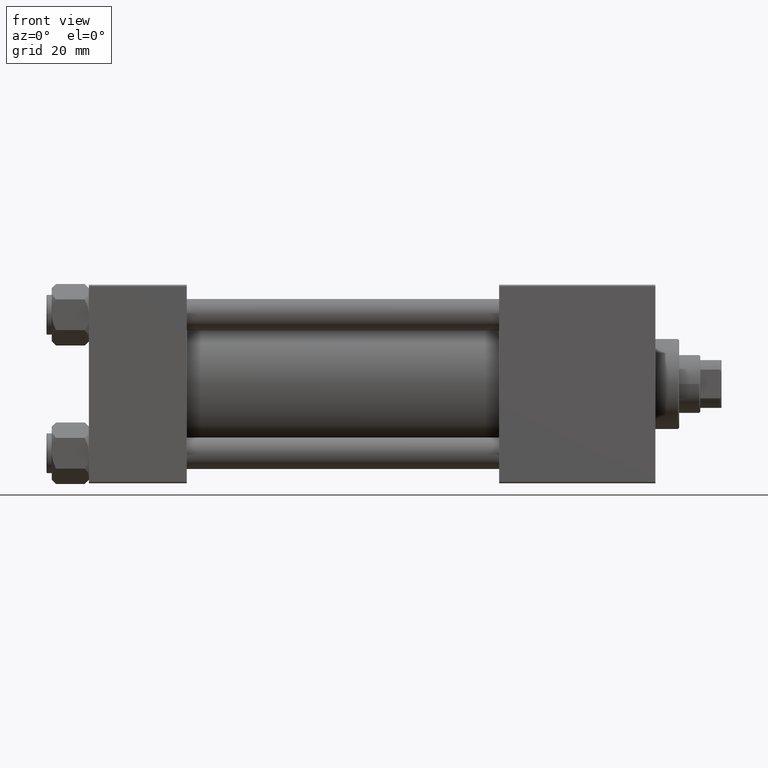
[diagram: clean part render]
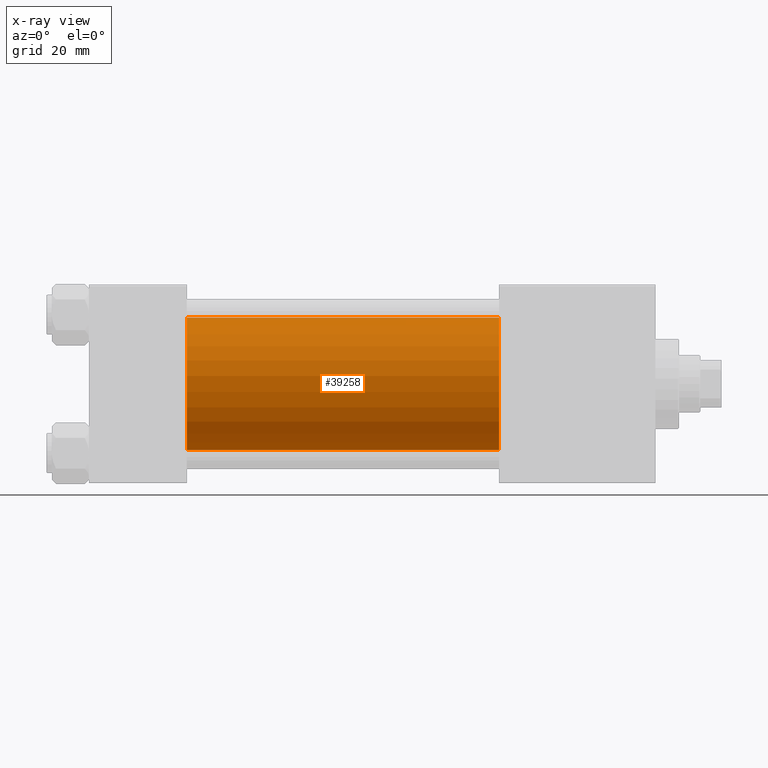
[diagram: x-ray — body ghosted, one internal face saturated and labeled with its STEP entity id]
A machine part, front view, then the same camera in x-ray: the body is ghosted and one INTERNAL B-rep face — a face not visible from any outside direction — is saturated and labeled: STEP entity #39258.
In plain terms, the highlighted cylindrical surface (partial cylindrical patch) has radius 25 mm, axis along (-1, -0, -0).
Its self-contained STEP definition (entity closure, byte-faithful):
#1914 = EDGE_LOOP ( 'NONE', ( #7249, #29724, #13193, #14098 ) ) ;
#3451 = DIRECTION ( 'NONE',  ( 0.000000000000000000, 0.000000000000000000, -1.000000000000000000 ) ) ;
#3592 = EDGE_CURVE ( 'NONE', #42280, #27826, #3829, .T. ) ;
#3829 = CIRCLE ( 'NONE', #25800, 25.00000000000000000 ) ;
#4039 = CARTESIAN_POINT ( 'NONE',  ( 155.0000000000000000, -2.602085213965210642E-15, 0.000000000000000000 ) ) ;
#6667 = CARTESIAN_POINT ( 'NONE',  ( 37.00000000000000000, -2.602085213965210642E-15, 25.00000000000000000 ) ) ;
#7249 = ORIENTED_EDGE ( 'NONE', *, *, #30979, .T. ) ;
#8963 = DIRECTION ( 'NONE',  ( -1.000000000000000000, -0.000000000000000000, -0.000000000000000000 ) ) ;
#9457 = CYLINDRICAL_SURFACE ( 'NONE', #41332, 25.00000000000000000 ) ;
#10594 = CARTESIAN_POINT ( 'NONE',  ( 37.00000000000000000, -2.602085213965210642E-15, 0.000000000000000000 ) ) ;
#12548 = FACE_OUTER_BOUND ( 'NONE', #1914, .T. ) ;
#13193 = ORIENTED_EDGE ( 'NONE', *, *, #3592, .F. ) ;
#13530 = DIRECTION ( 'NONE',  ( -1.000000000000000000, -0.000000000000000000, -0.000000000000000000 ) ) ;
#14098 = ORIENTED_EDGE ( 'NONE', *, *, #48569, .F. ) ;
#17159 = VERTEX_POINT ( 'NONE', #29029 ) ;
#17421 = LINE ( 'NONE', #21998, #19548 ) ;
#19548 = VECTOR ( 'NONE', #32945, 1000.000000000000000 ) ;
#19579 = DIRECTION ( 'NONE',  ( 1.000000000000000000, 0.000000000000000000, 0.000000000000000000 ) ) ;
#21486 = CARTESIAN_POINT ( 'NONE',  ( 37.00000000000000000, 4.595317839031724996E-16, -25.00000000000000000 ) ) ;
#21998 = CARTESIAN_POINT ( 'NONE',  ( 155.0000000000000000, -2.602085213965210642E-15, 25.00000000000000000 ) ) ;
#22308 = DIRECTION ( 'NONE',  ( 1.000000000000000000, 0.000000000000000000, 0.000000000000000000 ) ) ;
#24031 = CIRCLE ( 'NONE', #45116, 25.00000000000000000 ) ;
#24258 = CARTESIAN_POINT ( 'NONE',  ( 155.0000000000000000, -2.602085213965210642E-15, 0.000000000000000000 ) ) ;
#25800 = AXIS2_PLACEMENT_3D ( 'NONE', #10594, #22308, #3451 ) ;
#27826 = VERTEX_POINT ( 'NONE', #21486 ) ;
#28829 = DIRECTION ( 'NONE',  ( 0.000000000000000000, 0.000000000000000000, 1.000000000000000000 ) ) ;
#29029 = CARTESIAN_POINT ( 'NONE',  ( 155.0000000000000000, -2.602085213965210642E-15, 25.00000000000000000 ) ) ;
#29724 = ORIENTED_EDGE ( 'NONE', *, *, #33658, .T. ) ;
#30979 = EDGE_CURVE ( 'NONE', #17159, #42615, #24031, .T. ) ;
#32945 = DIRECTION ( 'NONE',  ( -1.000000000000000000, -0.000000000000000000, -0.000000000000000000 ) ) ;
#33658 = EDGE_CURVE ( 'NONE', #42615, #27826, #44822, .T. ) ;
#35115 = DIRECTION ( 'NONE',  ( 0.000000000000000000, 0.000000000000000000, -1.000000000000000000 ) ) ;
#39258 = ADVANCED_FACE ( 'NONE', ( #12548 ), #9457, .F. ) ;
#41332 = AXIS2_PLACEMENT_3D ( 'NONE', #24258, #8963, #28829 ) ;
#42280 = VERTEX_POINT ( 'NONE', #6667 ) ;
#42615 = VERTEX_POINT ( 'NONE', #50104 ) ;
#44822 = LINE ( 'NONE', #45072, #50049 ) ;
#45072 = CARTESIAN_POINT ( 'NONE',  ( 155.0000000000000000, 4.595317839031724996E-16, -25.00000000000000000 ) ) ;
#45116 = AXIS2_PLACEMENT_3D ( 'NONE', #4039, #19579, #35115 ) ;
#48569 = EDGE_CURVE ( 'NONE', #17159, #42280, #17421, .T. ) ;
#50049 = VECTOR ( 'NONE', #13530, 1000.000000000000000 ) ;
#50104 = CARTESIAN_POINT ( 'NONE',  ( 155.0000000000000000, 4.595317839031724996E-16, -25.00000000000000000 ) ) ;